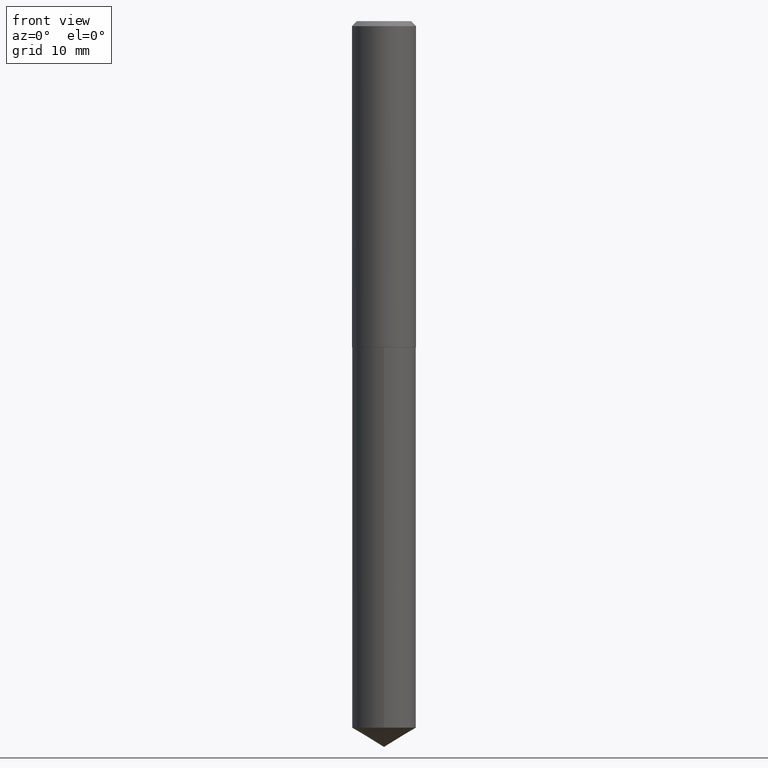
[diagram: clean part render]
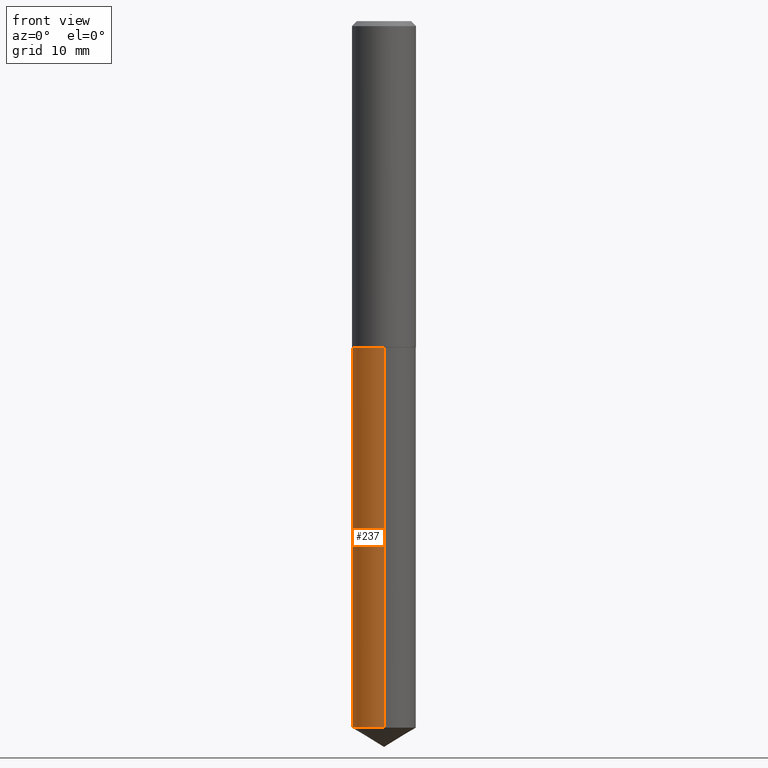
[diagram: same view with one face highlighted and labeled with its STEP entity id]
A machine part, front view. The second image highlights one B-rep face of the part: STEP entity #237.
In plain terms, the highlighted cylindrical surface (edge-blend (fillet) strip) has radius 5.0419 mm, axis along (-0, 0, 1).
Its self-contained STEP definition (entity closure, byte-faithful):
#8 = CARTESIAN_POINT ( 'NONE',  ( -1.386118091520674425E-15, -0.1985000000000070874, -2.021999999999999797 ) ) ;
#13 = DIRECTION ( 'NONE',  ( -2.445399694485218143E-29, 3.491580310731022583E-15, 1.000000000000000000 ) ) ;
#16 = DIRECTION ( 'NONE',  ( -2.445399694485218423E-29, 3.491580310731022583E-15, 1.000000000000000000 ) ) ;
#31 = VERTEX_POINT ( 'NONE', #309 ) ;
#41 = DIRECTION ( 'NONE',  ( -6.982962677686265922E-15, -1.000000000000000000, 2.752491681273816674E-15 ) ) ;
#47 = DIRECTION ( 'NONE',  ( -2.445399694485218143E-29, 3.491580310731022583E-15, 1.000000000000000000 ) ) ;
#80 = CARTESIAN_POINT ( 'NONE',  ( -1.386118091520674425E-15, -0.1985000000000070874, -2.021999999999999797 ) ) ;
#93 = LINE ( 'NONE', #8, #385 ) ;
#96 = LINE ( 'NONE', #348, #351 ) ;
#99 = CIRCLE ( 'NONE', #156, 0.1985000000000000098 ) ;
#100 = EDGE_CURVE ( 'NONE', #306, #263, #331, .T. ) ;
#102 = CARTESIAN_POINT ( 'NONE',  ( 1.410427330483906421E-15, 0.1984999999999929321, -2.022000000000001130 ) ) ;
#104 = DIRECTION ( 'NONE',  ( -2.445399694485218143E-29, 3.491580310731022583E-15, 1.000000000000000000 ) ) ;
#113 = VERTEX_POINT ( 'NONE', #314 ) ;
#114 = EDGE_LOOP ( 'NONE', ( #367, #261, #176, #199 ) ) ;
#134 = CARTESIAN_POINT ( 'NONE',  ( 4.944737926106347490E-29, -7.059775267140842055E-15, -2.022000000000000242 ) ) ;
#156 = AXIS2_PLACEMENT_3D ( 'NONE', #189, #13, #41 ) ;
#176 = ORIENTED_EDGE ( 'NONE', *, *, #225, .T. ) ;
#180 = EDGE_CURVE ( 'NONE', #113, #306, #96, .T. ) ;
#189 = CARTESIAN_POINT ( 'NONE',  ( 1.071277351076237585E-28, -1.529546758541459341E-14, -4.380729167123029733 ) ) ;
#194 = CYLINDRICAL_SURFACE ( 'NONE', #269, 0.1985000000000000098 ) ;
#196 = FACE_OUTER_BOUND ( 'NONE', #114, .T. ) ;
#199 = ORIENTED_EDGE ( 'NONE', *, *, #100, .F. ) ;
#215 = EDGE_CURVE ( 'NONE', #113, #31, #99, .T. ) ;
#216 = DIRECTION ( 'NONE',  ( -2.445399694485218423E-29, 3.491580310731022583E-15, 1.000000000000000000 ) ) ;
#225 = EDGE_CURVE ( 'NONE', #31, #263, #93, .T. ) ;
#237 = ADVANCED_FACE ( 'NONE', ( #196 ), #194, .T. ) ;
#261 = ORIENTED_EDGE ( 'NONE', *, *, #215, .T. ) ;
#263 = VERTEX_POINT ( 'NONE', #80 ) ;
#269 = AXIS2_PLACEMENT_3D ( 'NONE', #134, #104, #283 ) ;
#279 = CARTESIAN_POINT ( 'NONE',  ( 4.944737926106347490E-29, -7.059775267140842055E-15, -2.022000000000000242 ) ) ;
#283 = DIRECTION ( 'NONE',  ( -6.982962677686265922E-15, -1.000000000000000000, 4.128737521910725011E-15 ) ) ;
#306 = VERTEX_POINT ( 'NONE', #102 ) ;
#309 = CARTESIAN_POINT ( 'NONE',  ( -1.386118091520616444E-15, -0.1985000000000152753, -4.380729167123028844 ) ) ;
#314 = CARTESIAN_POINT ( 'NONE',  ( 1.410427330483905632E-15, 0.1984999999999846887, -4.380729167123029733 ) ) ;
#331 = CIRCLE ( 'NONE', #384, 0.1985000000000000098 ) ;
#348 = CARTESIAN_POINT ( 'NONE',  ( 1.410427330483848242E-15, 0.1984999999999929321, -2.022000000000001130 ) ) ;
#351 = VECTOR ( 'NONE', #216, 39.37007874015748143 ) ;
#367 = ORIENTED_EDGE ( 'NONE', *, *, #180, .F. ) ;
#371 = DIRECTION ( 'NONE',  ( -6.982962677686265922E-15, -1.000000000000000000, 4.128737521910725011E-15 ) ) ;
#384 = AXIS2_PLACEMENT_3D ( 'NONE', #279, #47, #371 ) ;
#385 = VECTOR ( 'NONE', #16, 39.37007874015748143 ) ;